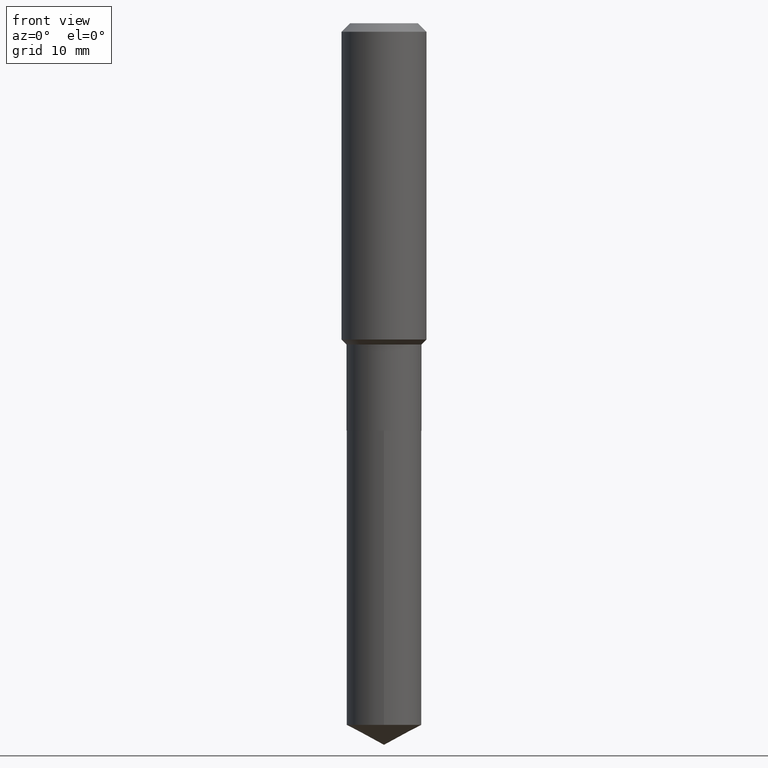
[diagram: clean part render]
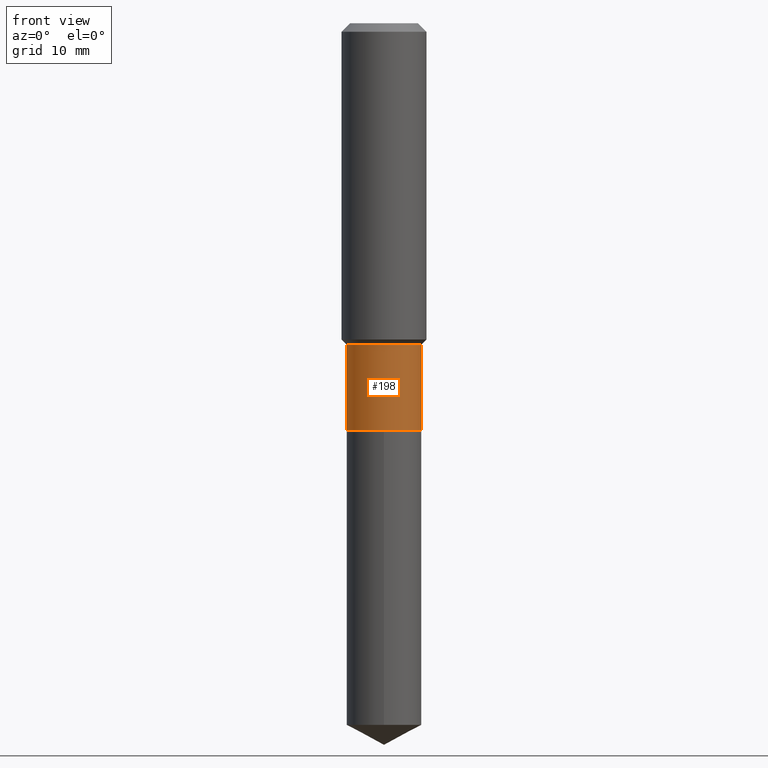
[diagram: same view with one face highlighted and labeled with its STEP entity id]
A machine part, front view. The second image highlights one B-rep face of the part: STEP entity #198.
In plain terms, the highlighted cylindrical surface (partial cylindrical patch) has radius 5.2997 mm, axis along (-0, 0, 1).
Its self-contained STEP definition (entity closure, byte-faithful):
#8 = FACE_OUTER_BOUND ( 'NONE', #79, .T. ) ;
#14 = AXIS2_PLACEMENT_3D ( 'NONE', #176, #102, #420 ) ;
#20 = CIRCLE ( 'NONE', #231, 0.2086500000000000021 ) ;
#39 = CARTESIAN_POINT ( 'NONE',  ( 0.2086499999999999466, -7.698716352149130505E-15, -1.787699999999999845 ) ) ;
#61 = EDGE_CURVE ( 'NONE', #268, #65, #181, .T. ) ;
#64 = EDGE_CURVE ( 'NONE', #309, #65, #137, .T. ) ;
#65 = VERTEX_POINT ( 'NONE', #39 ) ;
#79 = EDGE_LOOP ( 'NONE', ( #162, #466, #383, #343 ) ) ;
#99 = VECTOR ( 'NONE', #136, 39.37007874015748143 ) ;
#102 = DIRECTION ( 'NONE',  ( -2.445468806185136597E-29, 3.491481338843145583E-15, 1.000000000000000000 ) ) ;
#128 = VERTEX_POINT ( 'NONE', #409 ) ;
#136 = DIRECTION ( 'NONE',  ( -2.445468806185136877E-29, 3.491481338843145188E-15, 1.000000000000000000 ) ) ;
#137 = CIRCLE ( 'NONE', #14, 0.2086499999999999466 ) ;
#146 = CYLINDRICAL_SURFACE ( 'NONE', #380, 0.2086499999999999744 ) ;
#149 = DIRECTION ( 'NONE',  ( -2.445468806185136597E-29, 3.491481338843145583E-15, 1.000000000000000000 ) ) ;
#162 = ORIENTED_EDGE ( 'NONE', *, *, #241, .F. ) ;
#174 = CARTESIAN_POINT ( 'NONE',  ( -0.2086499999999999466, -5.596081848207143663E-15, -1.787699999999999845 ) ) ;
#176 = CARTESIAN_POINT ( 'NONE',  ( 4.371764584817168227E-29, -6.241721189449890773E-15, -1.787699999999999845 ) ) ;
#181 = LINE ( 'NONE', #459, #401 ) ;
#192 = CARTESIAN_POINT ( 'NONE',  ( 5.544122330502323530E-29, -7.915537343291296237E-15, -2.267100000000000115 ) ) ;
#198 = ADVANCED_FACE ( 'NONE', ( #8 ), #146, .T. ) ;
#222 = CARTESIAN_POINT ( 'NONE',  ( -0.2086499999999999744, 1.482547418163448856E-15, -1.026335806581685820E-29 ) ) ;
#226 = DIRECTION ( 'NONE',  ( -2.445468806185136597E-29, 3.491481338843145583E-15, 1.000000000000000000 ) ) ;
#231 = AXIS2_PLACEMENT_3D ( 'NONE', #192, #226, #342 ) ;
#241 = EDGE_CURVE ( 'NONE', #128, #309, #288, .T. ) ;
#258 = CARTESIAN_POINT ( 'NONE',  ( 0.2086500000000000021, -9.372532505990534391E-15, -2.267100000000000115 ) ) ;
#268 = VERTEX_POINT ( 'NONE', #258 ) ;
#288 = LINE ( 'NONE', #222, #99 ) ;
#309 = VERTEX_POINT ( 'NONE', #174 ) ;
#329 = DIRECTION ( 'NONE',  ( 1.000000000000000000, -6.982962677686266711E-15, 4.876176775795935793E-29 ) ) ;
#342 = DIRECTION ( 'NONE',  ( 1.000000000000000000, -6.982962677686265922E-15, 0.000000000000000000 ) ) ;
#343 = ORIENTED_EDGE ( 'NONE', *, *, #64, .F. ) ;
#354 = EDGE_CURVE ( 'NONE', #128, #268, #20, .T. ) ;
#368 = CARTESIAN_POINT ( 'NONE',  ( 0.000000000000000000, 0.000000000000000000, 0.000000000000000000 ) ) ;
#380 = AXIS2_PLACEMENT_3D ( 'NONE', #368, #149, #329 ) ;
#383 = ORIENTED_EDGE ( 'NONE', *, *, #61, .T. ) ;
#401 = VECTOR ( 'NONE', #412, 39.37007874015748143 ) ;
#409 = CARTESIAN_POINT ( 'NONE',  ( -0.2086500000000000021, -5.596081848207143663E-15, -2.267100000000000115 ) ) ;
#412 = DIRECTION ( 'NONE',  ( -2.445468806185136877E-29, 3.491481338843145188E-15, 1.000000000000000000 ) ) ;
#420 = DIRECTION ( 'NONE',  ( 1.000000000000000000, -6.982962677686267499E-15, 0.000000000000000000 ) ) ;
#459 = CARTESIAN_POINT ( 'NONE',  ( 0.2086499999999999744, -1.456995162699239338E-15, 1.017414284269821845E-29 ) ) ;
#466 = ORIENTED_EDGE ( 'NONE', *, *, #354, .T. ) ;